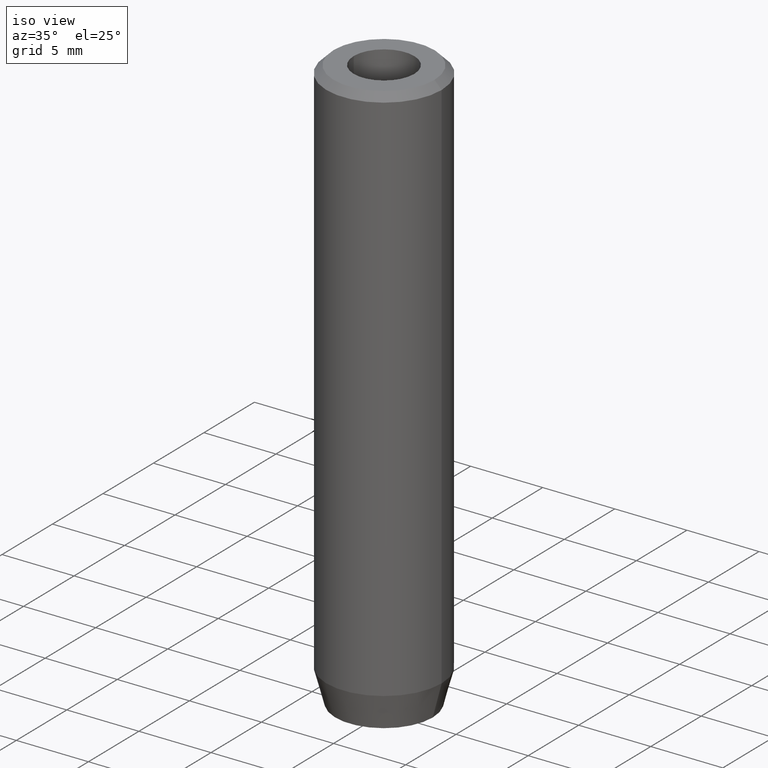
[diagram: clean part render]
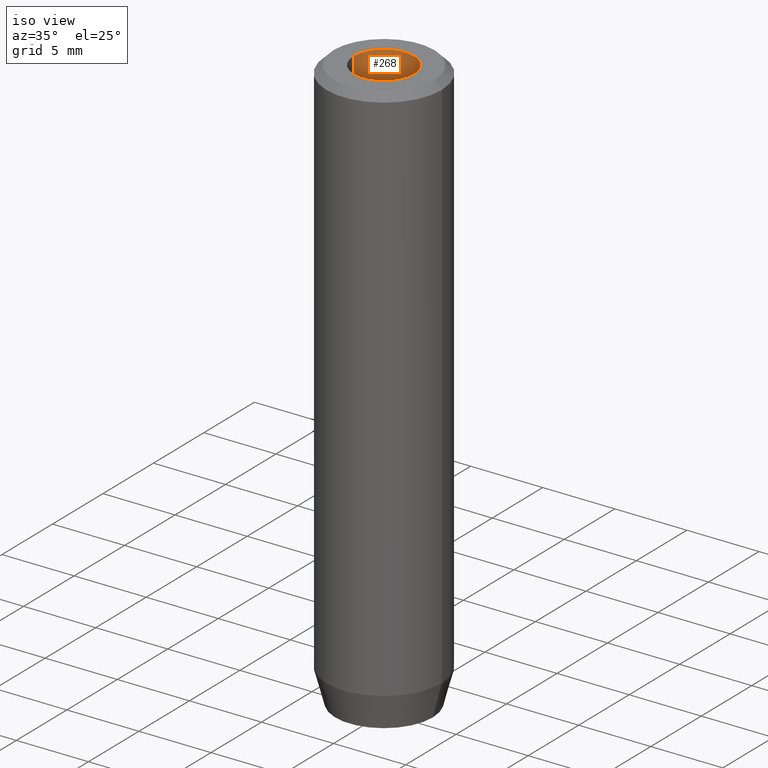
[diagram: same view with one face highlighted and labeled with its STEP entity id]
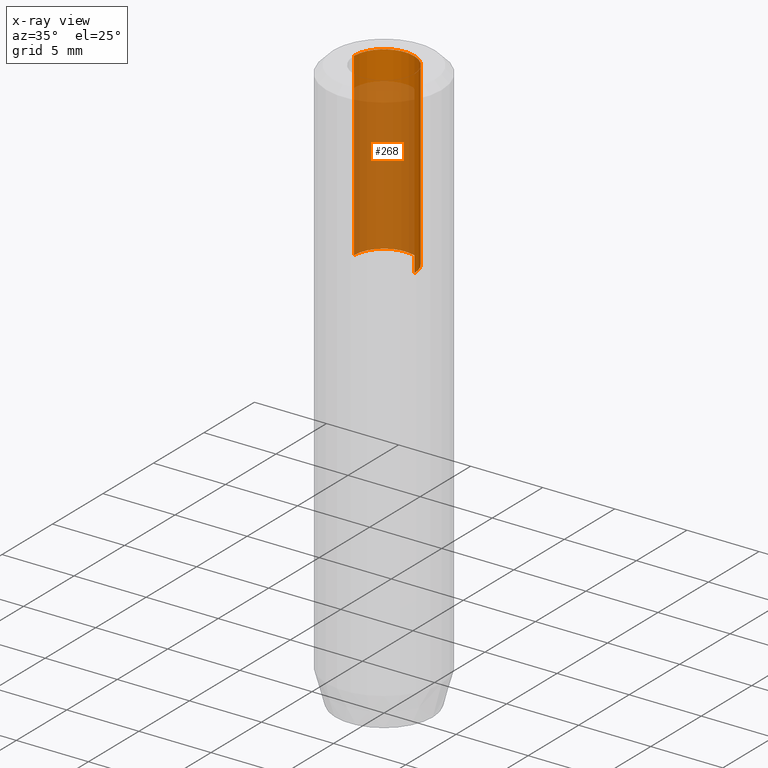
[diagram: x-ray of the same camera — body ghosted, the highlighted face saturated]
A machine part, iso view. The second image highlights one B-rep face of the part: STEP entity #268.
The next image is the same camera in x-ray: the body ghosted, the highlighted face saturated — about 75% of this face is hidden behind the body in this view.
In plain terms, the highlighted cylindrical surface (partial cylindrical patch) has radius 2.1 mm, axis along (-0, -0, 1).
Its self-contained STEP definition (entity closure, byte-faithful):
#25 = AXIS2_PLACEMENT_3D ( 'NONE', #497, #189, #538 ) ;
#26 = CARTESIAN_POINT ( 'NONE',  ( 2.099999999999998757, 0.000000000000000000, -1.990051048614449116E-16 ) ) ;
#37 = CARTESIAN_POINT ( 'NONE',  ( -2.099999999999998757, 2.571758278209439985E-16, -1.990051048614449116E-16 ) ) ;
#53 = DIRECTION ( 'NONE',  ( -0.000000000000000000, -0.000000000000000000, 1.000000000000000000 ) ) ;
#56 = CYLINDRICAL_SURFACE ( 'NONE', #25, 2.099999999999997868 ) ;
#61 = EDGE_LOOP ( 'NONE', ( #277, #295, #147, #458 ) ) ;
#110 = VERTEX_POINT ( 'NONE', #26 ) ;
#114 = EDGE_CURVE ( 'NONE', #284, #214, #301, .T. ) ;
#122 = DIRECTION ( 'NONE',  ( -0.000000000000000000, -0.000000000000000000, 1.000000000000000000 ) ) ;
#127 = CARTESIAN_POINT ( 'NONE',  ( 2.099999999999997868, 0.000000000000000000, 0.000000000000000000 ) ) ;
#147 = ORIENTED_EDGE ( 'NONE', *, *, #560, .T. ) ;
#183 = AXIS2_PLACEMENT_3D ( 'NONE', #566, #122, #568 ) ;
#189 = DIRECTION ( 'NONE',  ( -0.000000000000000000, -0.000000000000000000, 1.000000000000000000 ) ) ;
#197 = VERTEX_POINT ( 'NONE', #443 ) ;
#214 = VERTEX_POINT ( 'NONE', #37 ) ;
#226 = CARTESIAN_POINT ( 'NONE',  ( -2.099999999999996980, 2.571758278209438013E-16, -12.50000000000000000 ) ) ;
#233 = CIRCLE ( 'NONE', #401, 2.099999999999996980 ) ;
#268 = ADVANCED_FACE ( 'NONE', ( #457 ), #56, .F. ) ;
#277 = ORIENTED_EDGE ( 'NONE', *, *, #114, .F. ) ;
#284 = VERTEX_POINT ( 'NONE', #226 ) ;
#285 = CIRCLE ( 'NONE', #183, 2.099999999999998757 ) ;
#291 = EDGE_CURVE ( 'NONE', #197, #284, #233, .T. ) ;
#295 = ORIENTED_EDGE ( 'NONE', *, *, #291, .F. ) ;
#296 = CARTESIAN_POINT ( 'NONE',  ( -2.099999999999997868, 2.571758278209438999E-16, 0.000000000000000000 ) ) ;
#301 = LINE ( 'NONE', #296, #585 ) ;
#367 = DIRECTION ( 'NONE',  ( 1.000000000000000000, 0.000000000000000000, 0.000000000000000000 ) ) ;
#391 = DIRECTION ( 'NONE',  ( -0.000000000000000000, -0.000000000000000000, 1.000000000000000000 ) ) ;
#401 = AXIS2_PLACEMENT_3D ( 'NONE', #406, #53, #367 ) ;
#406 = CARTESIAN_POINT ( 'NONE',  ( 0.000000000000000000, 0.000000000000000000, -12.50000000000000000 ) ) ;
#435 = VECTOR ( 'NONE', #487, 1000.000000000000000 ) ;
#443 = CARTESIAN_POINT ( 'NONE',  ( 2.099999999999996980, 0.000000000000000000, -12.50000000000000000 ) ) ;
#457 = FACE_OUTER_BOUND ( 'NONE', #61, .T. ) ;
#458 = ORIENTED_EDGE ( 'NONE', *, *, #537, .T. ) ;
#487 = DIRECTION ( 'NONE',  ( -0.000000000000000000, -0.000000000000000000, 1.000000000000000000 ) ) ;
#497 = CARTESIAN_POINT ( 'NONE',  ( 0.000000000000000000, 0.000000000000000000, 0.000000000000000000 ) ) ;
#532 = LINE ( 'NONE', #127, #435 ) ;
#537 = EDGE_CURVE ( 'NONE', #110, #214, #285, .T. ) ;
#538 = DIRECTION ( 'NONE',  ( 1.000000000000000000, 0.000000000000000000, 0.000000000000000000 ) ) ;
#560 = EDGE_CURVE ( 'NONE', #197, #110, #532, .T. ) ;
#566 = CARTESIAN_POINT ( 'NONE',  ( 0.000000000000000000, 0.000000000000000000, -1.990051048614449116E-16 ) ) ;
#568 = DIRECTION ( 'NONE',  ( 1.000000000000000000, 0.000000000000000000, 0.000000000000000000 ) ) ;
#585 = VECTOR ( 'NONE', #391, 1000.000000000000000 ) ;